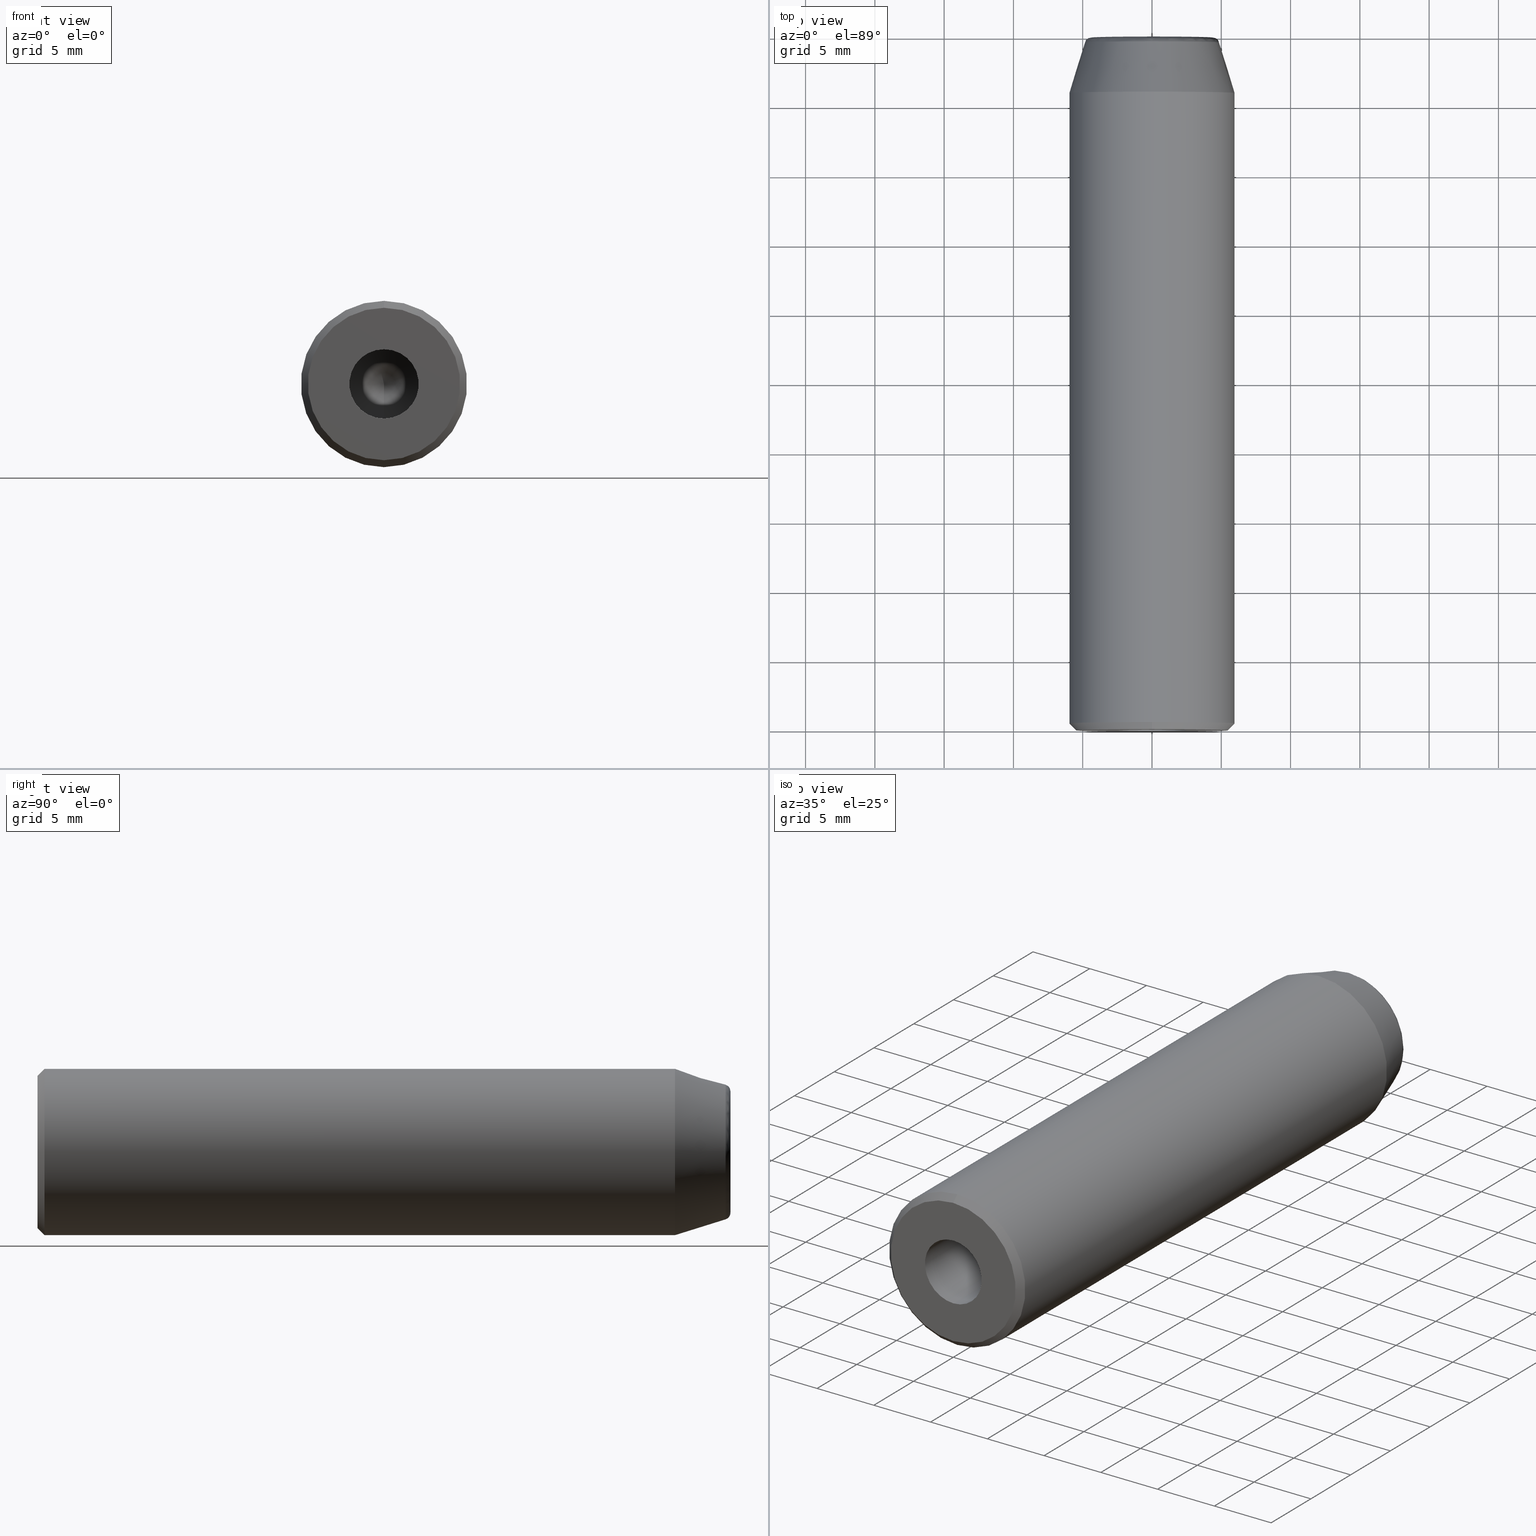
[diagram: canonical four-view strip — front | top / right | iso, engineering-drawing reading convention]
A machine part, canonical four-view strip (front | top / right | iso — engineering-drawing reading convention). The complete STEP part file that produces these views, byte-faithful:
ISO-10303-21;
HEADER;
FILE_DESCRIPTION (( 'STEP AP203' ),
    '1' );
FILE_NAME ('524209.STEP',
    '2024-06-12T02:07:33',
    ( 'Windows User' ),
    ( 'P R C' ),
    'SwSTEP 2.0',
    'SolidWorks 2020',
    '' );
FILE_SCHEMA (( 'CONFIG_CONTROL_DESIGN' ));
ENDSEC;

DATA;
#1 = CALENDAR_DATE ( 2024, 12, 6 ) ;
#2 = ORIENTED_EDGE ( 'NONE', *, *, #5, .F. ) ;
#3 = CALENDAR_DATE ( 2024, 12, 6 ) ;
#4 = EDGE_LOOP ( 'NONE', ( #291 ) ) ;
#5 = EDGE_CURVE ( 'NONE', #161, #161, #267, .T. ) ;
#6 = ORIENTED_EDGE ( 'NONE', *, *, #269, .T. ) ;
#7 = EDGE_LOOP ( 'NONE', ( #180 ) ) ;
#8 = ADVANCED_FACE ( 'NONE', ( #281, #275 ), #253, .F. ) ;
#9 = FACE_BOUND ( 'NONE', #62, .T. ) ;
#10 = CARTESIAN_POINT ( 'NONE',  ( 0.000000000000000000, 45.99999999999998579, 0.000000000000000000 ) ) ;
#11 = AXIS2_PLACEMENT_3D ( 'NONE', #279, #66, #117 ) ;
#12 = DIRECTION ( 'NONE',  ( 0.000000000000000000, -1.000000000000000000, 0.000000000000000000 ) ) ;
#13 = CARTESIAN_POINT ( 'NONE',  ( -9.218466664468710547, 50.00000000000000000, 4.609233332234355274 ) ) ;
#14 = PRODUCT_DEFINITION_SHAPE ( 'NONE', 'NONE',  #129 ) ;
#15 = APPROVAL ( #225, 'δָ��' ) ;
#16 = CARTESIAN_POINT ( 'NONE',  ( 0.000000000000000000, 0.5000000001018634066, 0.000000000000000000 ) ) ;
#17 = APPROVAL_PERSON_ORGANIZATION ( #123, #15, #287 ) ;
#18 = DIRECTION ( 'NONE',  ( -0.000000000000000000, 1.000000000000000000, 0.000000000000000000 ) ) ;
#19 = FACE_BOUND ( 'NONE', #300, .T. ) ;
#20 = PLANE ( 'NONE',  #170 ) ;
#21 = CARTESIAN_POINT ( 'NONE',  ( -9.719289064679403012, 49.64913749651296371, -4.859644532339701506 ) ) ;
#22 = CARTESIAN_POINT ( 'NONE',  ( 5.483787781522369726E-16, 50.00000000000000000, -4.382404543304999400 ) ) ;
#23 = FACE_OUTER_BOUND ( 'NONE', #181, .T. ) ;
#24 = CALENDAR_DATE ( 2024, 12, 6 ) ;
#25 = APPLICATION_PROTOCOL_DEFINITION ( 'international standard', 'config_control_design', 1994, #197 ) ;
#26 = PRODUCT_RELATED_PRODUCT_CATEGORY ( 'detail', '', ( #139 ) ) ;
#27 = CC_DESIGN_APPROVAL ( #141, ( #194 ) ) ;
#28 =( NAMED_UNIT ( * ) PLANE_ANGLE_UNIT ( ) SI_UNIT ( $, .RADIAN. ) );
#29 = LOCAL_TIME ( 10, 7, 33.00000000000000000, #83 ) ;
#30 = ORIENTED_EDGE ( 'NONE', *, *, #45, .T. ) ;
#31 = PERSON_AND_ORGANIZATION ( #199, #46 ) ;
#32 = EDGE_LOOP ( 'NONE', ( #255 ) ) ;
#33 = AXIS2_PLACEMENT_3D ( 'NONE', #157, #61, #303 ) ;
#34 = ORIENTED_EDGE ( 'NONE', *, *, #5, .T. ) ;
#35 = CYLINDRICAL_SURFACE ( 'NONE', #57, 2.499999999999998224 ) ;
#36 = CARTESIAN_POINT ( 'NONE',  ( 9.583974353807436231, 49.86564103399577164, -4.791987176903718115 ) ) ;
#37 = EDGE_LOOP ( 'NONE', ( #186 ) ) ;
#38 = VERTEX_POINT ( 'NONE', #135 ) ;
#39 = SECURITY_CLASSIFICATION ( '', '', #147 ) ;
#40 = ORIENTED_EDGE ( 'NONE', *, *, #269, .F. ) ;
#41 = ADVANCED_FACE ( 'NONE', ( #64 ), #272, .F. ) ;
#42 = FACE_OUTER_BOUND ( 'NONE', #224, .T. ) ;
#43 = DIRECTION ( 'NONE',  ( -0.000000000000000000, -1.000000000000000000, -0.000000000000000000 ) ) ;
#44 = CARTESIAN_POINT ( 'NONE',  ( -9.583974353807436231, 49.86564103399577164, -4.791987176903718115 ) ) ;
#45 = EDGE_CURVE ( 'NONE', #301, #301, #257, .T. ) ;
#46 = ORGANIZATION ( 'δָ��', 'δָ��', '' ) ;
#47 = FACE_OUTER_BOUND ( 'NONE', #7, .T. ) ;
#48 = FACE_OUTER_BOUND ( 'NONE', #126, .T. ) ;
#49 = DIRECTION ( 'NONE',  ( 0.000000000000000000, 0.000000000000000000, 1.000000000000000000 ) ) ;
#50 = PERSON_AND_ORGANIZATION_ROLE ( 'design_supplier' ) ;
#51 = DIRECTION ( 'NONE',  ( -0.000000000000000000, -1.000000000000000000, -0.000000000000000000 ) ) ;
#52 = COORDINATED_UNIVERSAL_TIME_OFFSET ( 8, 0, .AHEAD. ) ;
#53 =( BOUNDED_CURVE ( )  B_SPLINE_CURVE ( 3, ( #216, #90, #92, #211 ),
 .UNSPECIFIED., .F., .F. ) 
 B_SPLINE_CURVE_WITH_KNOTS ( ( 4, 4 ),
 ( 0.000000000000000000, 1.000000000000000000 ),
 .UNSPECIFIED. ) 
 CURVE ( )  GEOMETRIC_REPRESENTATION_ITEM ( )  RATIONAL_B_SPLINE_CURVE ( ( 1.000000000000000000, 0.3333333333333333703, 0.3333333333333333703, 1.000000000000000000 ) ) 
 REPRESENTATION_ITEM ( '' )  );
#54 = APPLICATION_PROTOCOL_DEFINITION ( 'international standard', 'config_control_design', 1994, #128 ) ;
#55 = APPROVAL_DATE_TIME ( #222, #15 ) ;
#56 = APPROVAL_DATE_TIME ( #60, #251 ) ;
#57 = AXIS2_PLACEMENT_3D ( 'NONE', #206, #43, #91 ) ;
#58 = APPROVAL_PERSON_ORGANIZATION ( #31, #251, #198 ) ;
#59 = ADVANCED_FACE ( 'NONE', ( #162, #9 ), #246, .T. ) ;
#60 = DATE_AND_TIME ( #271, #208 ) ;
#61 = DIRECTION ( 'NONE',  ( 0.000000000000000000, 1.000000000000000000, 0.000000000000000000 ) ) ;
#62 = EDGE_LOOP ( 'NONE', ( #229 ) ) ;
#63 = DIRECTION ( 'NONE',  ( 0.000000000000000000, 0.000000000000000000, -1.000000000000000000 ) ) ;
#64 = FACE_OUTER_BOUND ( 'NONE', #82, .T. ) ;
#65 = DIRECTION ( 'NONE',  ( -0.000000000000000000, -1.000000000000000000, -0.000000000000000000 ) ) ;
#66 = DIRECTION ( 'NONE',  ( -0.000000000000000000, -1.000000000000000000, -0.000000000000000000 ) ) ;
#67 = ADVANCED_FACE ( 'NONE', ( #109, #110 ), #35, .F. ) ;
#68 = CARTESIAN_POINT ( 'NONE',  ( 0.000000000000000000, 1.040949779275260987E-16, 0.000000000000000000 ) ) ;
#69 = DIRECTION ( 'NONE',  ( 0.000000000000000000, 0.000000000000000000, 1.000000000000000000 ) ) ;
#70 = VERTEX_POINT ( 'NONE', #254 ) ;
#71 = CIRCLE ( 'NONE', #103, 6.000000000000000888 ) ;
#72 = CARTESIAN_POINT ( 'NONE',  ( 0.000000000000000000, 0.5000000000000004441, 0.000000000000000000 ) ) ;
#73 = CARTESIAN_POINT ( 'NONE',  ( -8.764809086609998801, 50.00000000000000711, -4.382404543304999400 ) ) ;
#74 = CIRCLE ( 'NONE', #136, 4.859644532331230948 ) ;
#75 = CARTESIAN_POINT ( 'NONE',  ( 0.000000000000000000, 0.000000000000000000, 0.000000000000000000 ) ) ;
#76 = CC_DESIGN_SECURITY_CLASSIFICATION ( #39, ( #194 ) ) ;
#77 = PERSON_AND_ORGANIZATION_ROLE ( 'classification_officer' ) ;
#78 = CC_DESIGN_PERSON_AND_ORGANIZATION_ASSIGNMENT ( #106, #196, ( #129 ) ) ;
#79 = APPROVAL_PERSON_ORGANIZATION ( #195, #141, #169 ) ;
#80 = PERSON_AND_ORGANIZATION ( #199, #46 ) ;
#81 = APPROVAL_DATE_TIME ( #308, #141 ) ;
#82 = EDGE_LOOP ( 'NONE', ( #248 ) ) ;
#83 = COORDINATED_UNIVERSAL_TIME_OFFSET ( 8, 0, .AHEAD. ) ;
#84 = AXIS2_PLACEMENT_3D ( 'NONE', #242, #171, #215 ) ;
#85 = CC_DESIGN_PERSON_AND_ORGANIZATION_ASSIGNMENT ( #80, #266, ( #139 ) ) ;
#86 = MANIFOLD_SOLID_BREP ( '���1', #174 ) ;
#87 = LOCAL_TIME ( 10, 7, 33.00000000000000000, #268 ) ;
#88 = EDGE_LOOP ( 'NONE', ( #113 ) ) ;
#89 = FACE_OUTER_BOUND ( 'NONE', #234, .T. ) ;
#90 = CARTESIAN_POINT ( 'NONE',  ( -8.764809086609997024, 50.00000000000000000, 4.382404543304999400 ) ) ;
#91 = DIRECTION ( 'NONE',  ( 0.000000000000000000, 0.000000000000000000, -1.000000000000000000 ) ) ;
#92 = CARTESIAN_POINT ( 'NONE',  ( -8.764809086609997024, 50.00000000000000000, -4.382404543305000288 ) ) ;
#93 = EDGE_LOOP ( 'NONE', ( #2 ) ) ;
#94 = CARTESIAN_POINT ( 'NONE',  ( 0.000000000000000000, 11.00000000000000000, -2.499999999999998224 ) ) ;
#95 = VERTEX_POINT ( 'NONE', #140 ) ;
#96 = EDGE_CURVE ( 'NONE', #38, #38, #74, .T. ) ;
#97 = CARTESIAN_POINT ( 'NONE',  ( -9.218466664468710547, 50.00000000000000000, -4.609233332234355274 ) ) ;
#98 = DIRECTION ( 'NONE',  ( 0.000000000000000000, -0.000000000000000000, 1.000000000000000000 ) ) ;
#99 = CARTESIAN_POINT ( 'NONE',  ( 0.000000000000000000, 49.86564103399577164, 4.791987176903717227 ) ) ;
#100 = CARTESIAN_POINT ( 'NONE',  ( 8.764809086609998801, 50.00000000000000711, -4.382404543304999400 ) ) ;
#101 = CARTESIAN_POINT ( 'NONE',  ( 0.000000000000000000, 39.90000000000000568, 1.649999999999998579 ) ) ;
#102 = MECHANICAL_CONTEXT ( 'NONE', #197, 'mechanical' ) ;
#103 = AXIS2_PLACEMENT_3D ( 'NONE', #10, #65, #116 ) ;
#104 = ADVANCED_FACE ( 'NONE', ( #203, #89 ), #283, .T. ) ;
#105 = DATE_TIME_ROLE ( 'creation_date' ) ;
#106 = PERSON_AND_ORGANIZATION ( #199, #46 ) ;
#107 = DESIGN_CONTEXT ( 'detailed design', #128, 'design' ) ;
#108 = CC_DESIGN_DATE_AND_TIME_ASSIGNMENT ( #154, #249, ( #39 ) ) ;
#109 = FACE_OUTER_BOUND ( 'NONE', #4, .T. ) ;
#110 = FACE_OUTER_BOUND ( 'NONE', #159, .T. ) ;
#111 = CARTESIAN_POINT ( 'NONE',  ( 0.000000000000000000, 39.90000000000000568, 0.000000000000000000 ) ) ;
#112 = AXIS2_PLACEMENT_3D ( 'NONE', #115, #231, #134 ) ;
#113 = ORIENTED_EDGE ( 'NONE', *, *, #302, .F. ) ;
#114 = CARTESIAN_POINT ( 'NONE',  ( -9.583974353807436231, 49.86564103399577164, 4.791987176903718115 ) ) ;
#115 = CARTESIAN_POINT ( 'NONE',  ( 0.000000000000000000, 0.000000000000000000, 0.000000000000000000 ) ) ;
#116 = DIRECTION ( 'NONE',  ( 0.000000000000000000, 0.000000000000000000, -1.000000000000000000 ) ) ;
#117 = DIRECTION ( 'NONE',  ( 0.000000000000000000, 0.000000000000000000, -1.000000000000000000 ) ) ;
#118 = EDGE_CURVE ( 'NONE', #164, #164, #127, .T. ) ;
#119 = DIRECTION ( 'NONE',  ( -0.000000000000000000, -1.000000000000000000, -0.000000000000000000 ) ) ;
#120 = CARTESIAN_POINT ( 'NONE',  ( 0.000000000000000000, 50.00000000000000000, 0.000000000000000000 ) ) ;
#121 = CARTESIAN_POINT ( 'NONE',  ( 9.719289064679403012, 49.64913749651296371, 4.859644532339701506 ) ) ;
#122 = FACE_OUTER_BOUND ( 'NONE', #277, .T. ) ;
#123 = PERSON_AND_ORGANIZATION ( #199, #46 ) ;
#124 = CARTESIAN_POINT ( 'NONE',  ( 0.000000000000000000, 50.00000000000000000, 4.382404543304999400 ) ) ;
#125 = LOCAL_TIME ( 10, 7, 33.00000000000000000, #288 ) ;
#126 = EDGE_LOOP ( 'NONE', ( #30 ) ) ;
#127 = CIRCLE ( 'NONE', #295, 6.000000000000000888 ) ;
#128 = APPLICATION_CONTEXT ( 'configuration controlled 3d designs of mechanical parts and assemblies' ) ;
#129 = PRODUCT_DEFINITION ( 'δ֪', '', #194, #107 ) ;
#130 = APPROVAL_STATUS ( 'not_yet_approved' ) ;
#131 = CARTESIAN_POINT ( 'NONE',  ( 0.000000000000000000, 46.00000000007185008, 0.000000000000000000 ) ) ;
#132 = ORIENTED_EDGE ( 'NONE', *, *, #245, .T. ) ;
#133 = CARTESIAN_POINT ( 'NONE',  ( 0.000000000000000000, 49.64913749651297081, 4.859644532339702394 ) ) ;
#134 = DIRECTION ( 'NONE',  ( 0.000000000000000000, -0.000000000000000000, 1.000000000000000000 ) ) ;
#135 = CARTESIAN_POINT ( 'NONE',  ( 0.000000000000000000, 49.64913749651032049, -4.859644532331230948 ) ) ;
#136 = AXIS2_PLACEMENT_3D ( 'NONE', #296, #228, #182 ) ;
#137 = EDGE_LOOP ( 'NONE', ( #226 ) ) ;
#138 = DIRECTION ( 'NONE',  ( 0.000000000000000000, 0.000000000000000000, 1.000000000000000000 ) ) ;
#139 = PRODUCT ( '524209', '524209', '', ( #102 ) ) ;
#140 = CARTESIAN_POINT ( 'NONE',  ( 0.000000000000000000, 50.00000000000000000, 4.382404543304999400 ) ) ;
#141 = APPROVAL ( #244, 'δָ��' ) ;
#142 = CARTESIAN_POINT ( 'NONE',  ( 0.000000000000000000, 0.5000000000000004441, -6.000000000000000888 ) ) ;
#143 = AXIS2_PLACEMENT_3D ( 'NONE', #75, #219, #193 ) ;
#144 = FACE_OUTER_BOUND ( 'NONE', #37, .T. ) ;
#145 = CARTESIAN_POINT ( 'NONE',  ( 0.000000000000000000, 50.00000000000000000, 1.649999999999998579 ) ) ;
#146 = CYLINDRICAL_SURFACE ( 'NONE', #84, 1.649999999999998579 ) ;
#147 = SECURITY_CLASSIFICATION_LEVEL ( 'unclassified' ) ;
#148 = DIRECTION ( 'NONE',  ( 0.000000000000000000, 1.000000000000000000, 0.000000000000000000 ) ) ;
#149 = DATE_AND_TIME ( #1, #223 ) ;
#150 = ADVANCED_FACE ( 'NONE', ( #305, #23 ), #20, .T. ) ;
#151 =( NAMED_UNIT ( * ) SI_UNIT ( $, .STERADIAN. ) SOLID_ANGLE_UNIT ( ) );
#152 = AXIS2_PLACEMENT_3D ( 'NONE', #131, #12, #259 ) ;
#153 = CC_DESIGN_PERSON_AND_ORGANIZATION_ASSIGNMENT ( #286, #77, ( #39 ) ) ;
#154 = DATE_AND_TIME ( #176, #29 ) ;
#155 = CONICAL_SURFACE ( 'NONE', #179, 2.499999999997726263, 1.029744258685237446 ) ;
#156 = EDGE_CURVE ( 'NONE', #284, #284, #290, .T. ) ;
#157 = CARTESIAN_POINT ( 'NONE',  ( 0.000000000000000000, 0.000000000000000000, 0.000000000000000000 ) ) ;
#158 = VERTEX_POINT ( 'NONE', #238 ) ;
#159 = EDGE_LOOP ( 'NONE', ( #6 ) ) ;
#160 = CARTESIAN_POINT ( 'NONE',  ( -9.719289064679403012, 49.64913749651296371, 4.859644532339701506 ) ) ;
#161 = VERTEX_POINT ( 'NONE', #256 ) ;
#162 = FACE_OUTER_BOUND ( 'NONE', #32, .T. ) ;
#163 = CC_DESIGN_PERSON_AND_ORGANIZATION_ASSIGNMENT ( #264, #50, ( #194 ) ) ;
#164 = VERTEX_POINT ( 'NONE', #142 ) ;
#165 = CARTESIAN_POINT ( 'NONE',  ( 8.764809086609998801, 50.00000000000000711, 4.382404543304999400 ) ) ;
#166 = CARTESIAN_POINT ( 'NONE',  ( 0.000000000000000000, 49.64913749651297081, 4.859644532339702394 ) ) ;
#167 =( GEOMETRIC_REPRESENTATION_CONTEXT ( 3 ) GLOBAL_UNCERTAINTY_ASSIGNED_CONTEXT ( ( #200 ) ) GLOBAL_UNIT_ASSIGNED_CONTEXT ( ( #172, #28, #151 ) ) REPRESENTATION_CONTEXT ( 'NONE', 'WORKASPACE' ) );
#168 = DIRECTION ( 'NONE',  ( -0.000000000000000000, -1.000000000000000000, -0.000000000000000000 ) ) ;
#169 = APPROVAL_ROLE ( '' ) ;
#170 = AXIS2_PLACEMENT_3D ( 'NONE', #261, #148, #98 ) ;
#171 = DIRECTION ( 'NONE',  ( 0.000000000000000000, 1.000000000000000000, 0.000000000000000000 ) ) ;
#172 =( LENGTH_UNIT ( ) NAMED_UNIT ( * ) SI_UNIT ( .MILLI., .METRE. ) );
#173 = ADVANCED_FACE ( 'NONE', ( #47, #191 ), #146, .F. ) ;
#174 = CLOSED_SHELL ( 'NONE', ( #309, #67, #8, #240, #104, #41, #173, #150, #187, #59 ) ) ;
#175 = VERTEX_POINT ( 'NONE', #22 ) ;
#176 = CALENDAR_DATE ( 2024, 12, 6 ) ;
#177 = AXIS2_PLACEMENT_3D ( 'NONE', #239, #51, #263 ) ;
#178 = ADVANCED_BREP_SHAPE_REPRESENTATION ( '524209', ( #86, #143 ), #167 ) ;
#179 = AXIS2_PLACEMENT_3D ( 'NONE', #188, #235, #63 ) ;
#180 = ORIENTED_EDGE ( 'NONE', *, *, #156, .F. ) ;
#181 = EDGE_LOOP ( 'NONE', ( #184, #236 ) ) ;
#182 = DIRECTION ( 'NONE',  ( 0.000000000000000000, 0.000000000000000000, -1.000000000000000000 ) ) ;
#183 = DIRECTION ( 'NONE',  ( 0.000000000000000000, 0.000000000000000000, 1.000000000000000000 ) ) ;
#184 = ORIENTED_EDGE ( 'NONE', *, *, #245, .F. ) ;
#185 = CARTESIAN_POINT ( 'NONE',  ( 9.218466664468710547, 50.00000000000000000, 4.609233332234355274 ) ) ;
#186 = ORIENTED_EDGE ( 'NONE', *, *, #96, .F. ) ;
#187 = ADVANCED_FACE ( 'NONE', ( #122, #144 ), #304, .T. ) ;
#188 = CARTESIAN_POINT ( 'NONE',  ( 0.000000000000000000, 11.00000000002410161, 0.000000000000000000 ) ) ;
#189 =( BOUNDED_CURVE ( )  B_SPLINE_CURVE ( 3, ( #278, #306, #260, #205 ),
 .UNSPECIFIED., .F., .F. ) 
 B_SPLINE_CURVE_WITH_KNOTS ( ( 4, 4 ),
 ( 0.000000000000000000, 1.000000000000000000 ),
 .UNSPECIFIED. ) 
 CURVE ( )  GEOMETRIC_REPRESENTATION_ITEM ( )  RATIONAL_B_SPLINE_CURVE ( ( 1.000000000000000000, 0.3333333333333333703, 0.3333333333333333703, 1.000000000000000000 ) ) 
 REPRESENTATION_ITEM ( '' )  );
#190 = DIRECTION ( 'NONE',  ( 0.000000000000000000, 0.000000000000000000, -1.000000000000000000 ) ) ;
#191 = FACE_OUTER_BOUND ( 'NONE', #88, .T. ) ;
#192 = PERSON_AND_ORGANIZATION_ROLE ( 'creator' ) ;
#193 = DIRECTION ( 'NONE',  ( 1.000000000000000000, 0.000000000000000000, 0.000000000000000000 ) ) ;
#194 = PRODUCT_DEFINITION_FORMATION_WITH_SPECIFIED_SOURCE ( '�κ�', '', #139, .NOT_KNOWN. ) ;
#195 = PERSON_AND_ORGANIZATION ( #199, #46 ) ;
#196 = PERSON_AND_ORGANIZATION_ROLE ( 'creator' ) ;
#197 = APPLICATION_CONTEXT ( 'configuration controlled 3d designs of mechanical parts and assemblies' ) ;
#198 = APPROVAL_ROLE ( '' ) ;
#199 = PERSON ( 'δָ��', 'δָ��', 'δָ��', ('δָ��'), ('δָ��'), ('δָ��') ) ;
#200 = UNCERTAINTY_MEASURE_WITH_UNIT (LENGTH_MEASURE( 1.000000000000000082E-05 ), #172, 'distance_accuracy_value', 'NONE');
#201 = ORIENTED_EDGE ( 'NONE', *, *, #118, .F. ) ;
#202 = AXIS2_PLACEMENT_3D ( 'NONE', #16, #299, #183 ) ;
#203 = FACE_OUTER_BOUND ( 'NONE', #137, .T. ) ;
#204 = AXIS2_PLACEMENT_3D ( 'NONE', #294, #18, #69 ) ;
#205 = CARTESIAN_POINT ( 'NONE',  ( 0.000000000000000000, 50.00000000000000000, 4.382404543304999400 ) ) ;
#206 = CARTESIAN_POINT ( 'NONE',  ( 0.000000000000000000, 0.000000000000000000, 0.000000000000000000 ) ) ;
#207 = CARTESIAN_POINT ( 'NONE',  ( 9.719289064679403012, 49.64913749651296371, -4.859644532339701506 ) ) ;
#208 = LOCAL_TIME ( 10, 7, 33.00000000000000000, #289 ) ;
#209 = ORIENTED_EDGE ( 'NONE', *, *, #213, .T. ) ;
#210 = AXIS2_PLACEMENT_3D ( 'NONE', #68, #119, #190 ) ;
#211 = CARTESIAN_POINT ( 'NONE',  ( 5.483787781522369726E-16, 50.00000000000000000, -4.382404543304999400 ) ) ;
#212 = ORIENTED_EDGE ( 'NONE', *, *, #292, .T. ) ;
#213 = EDGE_CURVE ( 'NONE', #95, #175, #53, .T. ) ;
#214 = CARTESIAN_POINT ( 'NONE',  ( 9.583974353807436231, 49.86564103399577164, 4.791987176903718115 ) ) ;
#215 = DIRECTION ( 'NONE',  ( 0.000000000000000000, 0.000000000000000000, 1.000000000000000000 ) ) ;
#216 = CARTESIAN_POINT ( 'NONE',  ( 0.000000000000000000, 50.00000000000000000, 4.382404543304999400 ) ) ;
#217 = DIRECTION ( 'NONE',  ( 0.000000000000000000, 0.000000000000000000, -1.000000000000000000 ) ) ;
#218 = VERTEX_POINT ( 'NONE', #101 ) ;
#219 = DIRECTION ( 'NONE',  ( 0.000000000000000000, 0.000000000000000000, 1.000000000000000000 ) ) ;
#220 = CONICAL_SURFACE ( 'NONE', #202, 6.000000000085492502, 0.7853981633406048601 ) ;
#221 = CC_DESIGN_PERSON_AND_ORGANIZATION_ASSIGNMENT ( #270, #192, ( #194 ) ) ;
#222 = DATE_AND_TIME ( #3, #87 ) ;
#223 = LOCAL_TIME ( 10, 7, 33.00000000000000000, #52 ) ;
#224 = EDGE_LOOP ( 'NONE', ( #201 ) ) ;
#225 = APPROVAL_STATUS ( 'not_yet_approved' ) ;
#226 = ORIENTED_EDGE ( 'NONE', *, *, #118, .T. ) ;
#227 = SHAPE_DEFINITION_REPRESENTATION ( #14, #178 ) ;
#228 = DIRECTION ( 'NONE',  ( 0.000000000000000000, -1.000000000000000000, 0.000000000000000000 ) ) ;
#229 = ORIENTED_EDGE ( 'NONE', *, *, #96, .T. ) ;
#230 = CARTESIAN_POINT ( 'NONE',  ( 0.000000000000000000, 49.99999999999998579, -4.609233332234356162 ) ) ;
#231 = DIRECTION ( 'NONE',  ( 0.000000000000000000, 1.000000000000000000, 0.000000000000000000 ) ) ;
#232 = AXIS2_PLACEMENT_3D ( 'NONE', #120, #168, #49 ) ;
#233 = CARTESIAN_POINT ( 'NONE',  ( 9.218466664468710547, 50.00000000000000000, -4.609233332234355274 ) ) ;
#234 = EDGE_LOOP ( 'NONE', ( #212 ) ) ;
#235 = DIRECTION ( 'NONE',  ( 0.000000000000000000, -1.000000000000000000, 0.000000000000000000 ) ) ;
#236 = ORIENTED_EDGE ( 'NONE', *, *, #213, .F. ) ;
#237 = CIRCLE ( 'NONE', #210, 2.499999999999998224 ) ;
#238 = CARTESIAN_POINT ( 'NONE',  ( 0.000000000000000000, 1.040949779275260987E-16, -2.499999999999998224 ) ) ;
#239 = CARTESIAN_POINT ( 'NONE',  ( 0.000000000000000000, 25.00000000000000000, 0.000000000000000000 ) ) ;
#240 = ADVANCED_FACE ( 'NONE', ( #42, #19 ), #220, .T. ) ;
#241 = CARTESIAN_POINT ( 'NONE',  ( 0.000000000000000000, 49.99999999999998579, 4.609233332234356162 ) ) ;
#242 = CARTESIAN_POINT ( 'NONE',  ( 0.000000000000000000, 50.00000000000000000, 0.000000000000000000 ) ) ;
#243 = DIRECTION ( 'NONE',  ( 0.000000000000000000, 1.000000000000000000, 0.000000000000000000 ) ) ;
#244 = APPROVAL_STATUS ( 'not_yet_approved' ) ;
#245 = EDGE_CURVE ( 'NONE', #175, #95, #189, .T. ) ;
#246 = CONICAL_SURFACE ( 'NONE', #152, 5.999999999971805664, 0.3028848683740845149 ) ;
#247 = CC_DESIGN_APPROVAL ( #251, ( #39 ) ) ;
#248 = ORIENTED_EDGE ( 'NONE', *, *, #302, .T. ) ;
#249 = DATE_TIME_ROLE ( 'classification_date' ) ;
#250 = CC_DESIGN_APPROVAL ( #15, ( #129 ) ) ;
#251 = APPROVAL ( #130, 'δָ��' ) ;
#252 = ORIENTED_EDGE ( 'NONE', *, *, #156, .T. ) ;
#253 = PLANE ( 'NONE',  #112 ) ;
#254 = CARTESIAN_POINT ( 'NONE',  ( 0.000000000000000000, 45.99999999999998579, -6.000000000000000888 ) ) ;
#255 = ORIENTED_EDGE ( 'NONE', *, *, #292, .F. ) ;
#256 = CARTESIAN_POINT ( 'NONE',  ( 0.000000000000000000, 0.000000000000000000, 5.500000000040472514 ) ) ;
#257 = CIRCLE ( 'NONE', #11, 2.499999999999998224 ) ;
#258 = CARTESIAN_POINT ( 'NONE',  ( 0.000000000000000000, 49.86564103399577164, -4.791987176903717227 ) ) ;
#259 = DIRECTION ( 'NONE',  ( 0.000000000000000000, 0.000000000000000000, -1.000000000000000000 ) ) ;
#260 = CARTESIAN_POINT ( 'NONE',  ( 8.764809086609997024, 50.00000000000000000, 4.382404543304999400 ) ) ;
#261 = CARTESIAN_POINT ( 'NONE',  ( 0.000000000000000000, 50.00000000000000000, 0.000000000000000000 ) ) ;
#262 = CIRCLE ( 'NONE', #293, 1.649999999999998579 ) ;
#263 = DIRECTION ( 'NONE',  ( 0.000000000000000000, 0.000000000000000000, -1.000000000000000000 ) ) ;
#264 = PERSON_AND_ORGANIZATION ( #199, #46 ) ;
#265 = CARTESIAN_POINT ( 'NONE',  ( -8.764809086609998801, 50.00000000000000711, 4.382404543304999400 ) ) ;
#266 = PERSON_AND_ORGANIZATION_ROLE ( 'design_owner' ) ;
#267 = CIRCLE ( 'NONE', #33, 5.500000000040472514 ) ;
#268 = COORDINATED_UNIVERSAL_TIME_OFFSET ( 8, 0, .AHEAD. ) ;
#269 = EDGE_CURVE ( 'NONE', #158, #158, #237, .T. ) ;
#270 = PERSON_AND_ORGANIZATION ( #199, #46 ) ;
#271 = CALENDAR_DATE ( 2024, 12, 6 ) ;
#272 = CONICAL_SURFACE ( 'NONE', #204, 1.649999999870033207, 1.029744258665856727 ) ;
#273 = CC_DESIGN_DATE_AND_TIME_ASSIGNMENT ( #149, #105, ( #129 ) ) ;
#274 = EDGE_LOOP ( 'NONE', ( #40 ) ) ;
#275 = FACE_OUTER_BOUND ( 'NONE', #93, .T. ) ;
#276 = DIRECTION ( 'NONE',  ( 0.000000000000000000, 1.000000000000000000, 0.000000000000000000 ) ) ;
#277 = EDGE_LOOP ( 'NONE', ( #209, #132 ) ) ;
#278 = CARTESIAN_POINT ( 'NONE',  ( 5.483787781522369726E-16, 50.00000000000000000, -4.382404543304999400 ) ) ;
#279 = CARTESIAN_POINT ( 'NONE',  ( 0.000000000000000000, 11.00000000000000000, 0.000000000000000000 ) ) ;
#280 = CARTESIAN_POINT ( 'NONE',  ( 0.000000000000000000, 49.86564103399577164, 4.791987176903717227 ) ) ;
#281 = FACE_BOUND ( 'NONE', #274, .T. ) ;
#282 = CARTESIAN_POINT ( 'NONE',  ( 0.000000000000000000, 49.64913749651297081, -4.859644532339702394 ) ) ;
#283 = CYLINDRICAL_SURFACE ( 'NONE', #177, 6.000000000000000888 ) ;
#284 = VERTEX_POINT ( 'NONE', #145 ) ;
#285 = CARTESIAN_POINT ( 'NONE',  ( 0.000000000000000000, 50.00000000000000000, -4.382404543304999400 ) ) ;
#286 = PERSON_AND_ORGANIZATION ( #199, #46 ) ;
#287 = APPROVAL_ROLE ( '' ) ;
#288 = COORDINATED_UNIVERSAL_TIME_OFFSET ( 8, 0, .AHEAD. ) ;
#289 = COORDINATED_UNIVERSAL_TIME_OFFSET ( 8, 0, .AHEAD. ) ;
#290 = CIRCLE ( 'NONE', #232, 1.649999999999998579 ) ;
#291 = ORIENTED_EDGE ( 'NONE', *, *, #45, .F. ) ;
#292 = EDGE_CURVE ( 'NONE', #70, #70, #71, .T. ) ;
#293 = AXIS2_PLACEMENT_3D ( 'NONE', #111, #276, #138 ) ;
#294 = CARTESIAN_POINT ( 'NONE',  ( 0.000000000000000000, 39.89999999989777280, 0.000000000000000000 ) ) ;
#295 = AXIS2_PLACEMENT_3D ( 'NONE', #72, #243, #217 ) ;
#296 = CARTESIAN_POINT ( 'NONE',  ( 0.000000000000000000, 49.64913749651032049, 0.000000000000000000 ) ) ;
#297 = CARTESIAN_POINT ( 'NONE',  ( 0.000000000000000000, 49.99999999999998579, 4.609233332234356162 ) ) ;
#298 = EDGE_LOOP ( 'NONE', ( #252 ) ) ;
#299 = DIRECTION ( 'NONE',  ( 0.000000000000000000, 1.000000000000000000, 0.000000000000000000 ) ) ;
#300 = EDGE_LOOP ( 'NONE', ( #34 ) ) ;
#301 = VERTEX_POINT ( 'NONE', #94 ) ;
#302 = EDGE_CURVE ( 'NONE', #218, #218, #262, .T. ) ;
#303 = DIRECTION ( 'NONE',  ( 0.000000000000000000, 0.000000000000000000, 1.000000000000000000 ) ) ;
#304 =( BOUNDED_SURFACE ( )  B_SPLINE_SURFACE ( 3, 3, ( 
 ( #307, #165, #100, #285, #73, #265, #124 ),
 ( #241, #185, #233, #230, #97, #13, #297 ),
 ( #280, #214, #36, #258, #44, #114, #99 ),
 ( #133, #121, #207, #282, #21, #160, #166 ) ),
 .UNSPECIFIED., .F., .T., .F. ) 
 B_SPLINE_SURFACE_WITH_KNOTS ( ( 4, 4 ),
 ( 4, 3, 4 ),
 ( 0.000000000000000000, 1.000000000000000000 ),
 ( 0.000000000000000000, 0.5000000000000000000, 1.000000000000000000 ),
 .UNSPECIFIED. ) 
 GEOMETRIC_REPRESENTATION_ITEM ( )  RATIONAL_B_SPLINE_SURFACE ( (
 ( 1.000000000000000000, 0.3333333333333333148, 0.3333333333333333148, 1.000000000000000000, 0.3333333333333333148, 0.3333333333333333148, 1.000000000000000000),
 ( 0.8704604635415963410, 0.2901534878471987433, 0.2901534878471987433, 0.8704604635415963410, 0.2901534878471987433, 0.2901534878471987433, 0.8704604635415963410),
 ( 0.8704604635415963410, 0.2901534878471987433, 0.2901534878471987433, 0.8704604635415963410, 0.2901534878471987433, 0.2901534878471987433, 0.8704604635415963410),
 ( 1.000000000000000000, 0.3333333333333333148, 0.3333333333333333148, 1.000000000000000000, 0.3333333333333333148, 0.3333333333333333148, 1.000000000000000000) ) ) 
 REPRESENTATION_ITEM ( '' )  SURFACE ( )  );
#305 = FACE_BOUND ( 'NONE', #298, .T. ) ;
#306 = CARTESIAN_POINT ( 'NONE',  ( 8.764809086609997024, 50.00000000000000000, -4.382404543304998512 ) ) ;
#307 = CARTESIAN_POINT ( 'NONE',  ( 0.000000000000000000, 50.00000000000000000, 4.382404543304999400 ) ) ;
#308 = DATE_AND_TIME ( #24, #125 ) ;
#309 = ADVANCED_FACE ( 'NONE', ( #48 ), #155, .F. ) ;
ENDSEC;
END-ISO-10303-21;
